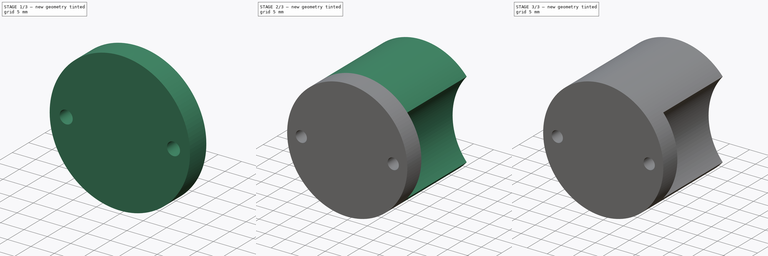
[diagram: build sequence overview — one tinted view per stage of 3, left to right]
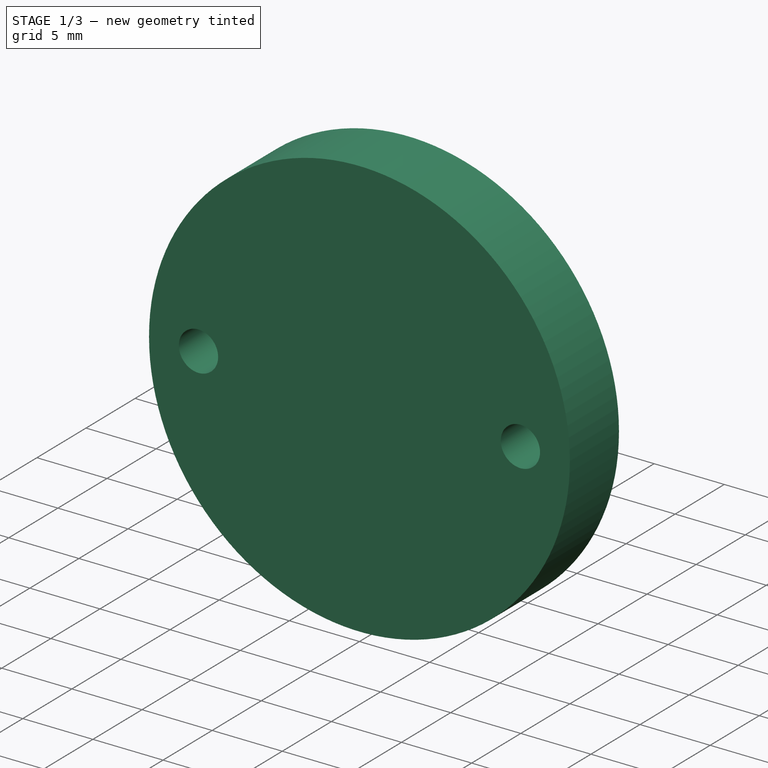
[diagram: stage 1 of 3 — iso view after this stage's code; geometry added in this stage tinted green]
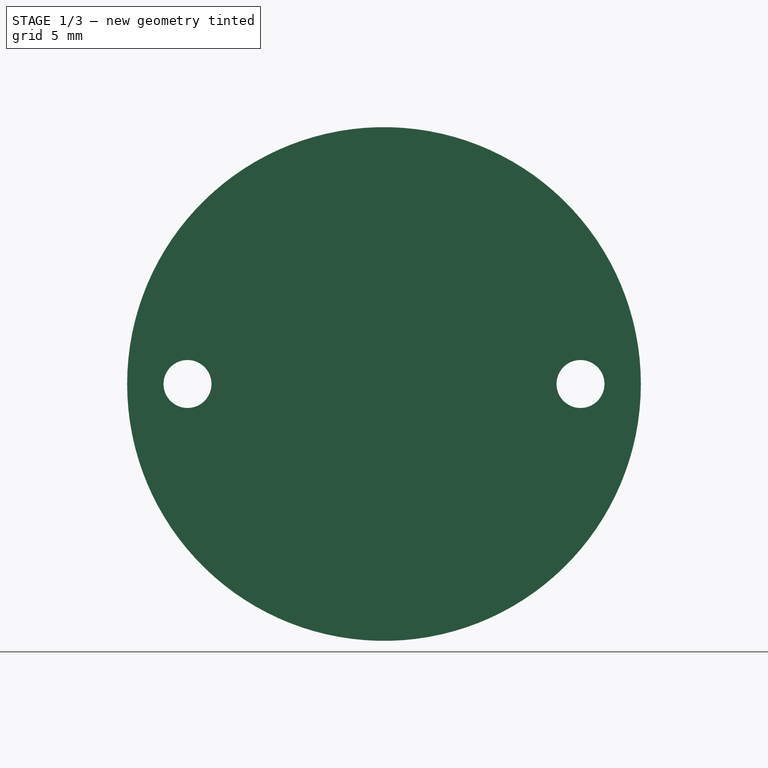
[diagram: stage 1 of 3 — front view after this stage's code; geometry added in this stage tinted green]
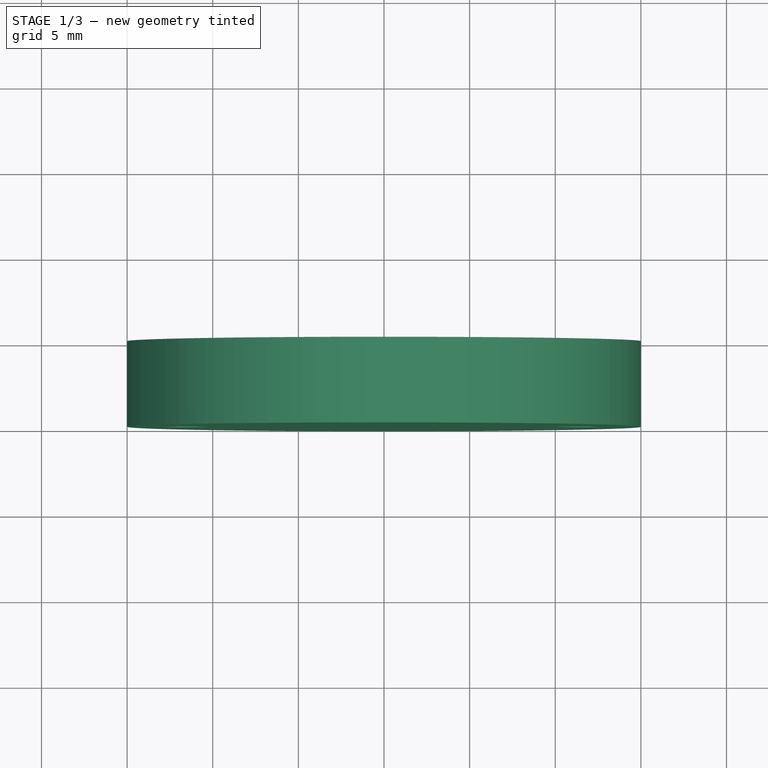
[diagram: stage 1 of 3 — top view after this stage's code; geometry added in this stage tinted green]
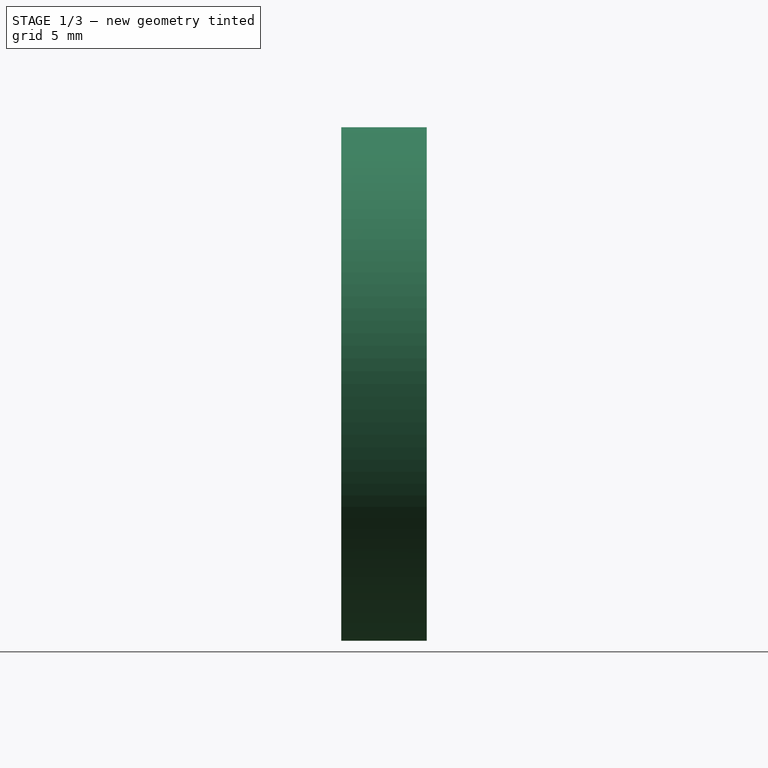
[diagram: stage 1 of 3 — right view after this stage's code; geometry added in this stage tinted green]
FCSTD DOCUMENT  (FreeCAD 0.18R16146 (Git))
Label: AxisTower
License: All rights reserved
LicenseURL: http://en.wikipedia.org/wiki/All_rights_reserved
objects: Sketcher::SketchObject×5, PartDesign::Pocket×3, PartDesign::Pad×2, PartDesign::Body×1
note: 16 computed .brp shape members not serialized (recipe doc carries the construction recipe); baked Part::Feature solids carry a one-line shape summary decoded from their .brp

FEATURE [Sketcher::SketchObject] Sketch073
  MapMode = 5
  Placement = pos=(0,0,0) rot=(1,0,0;1.5708rad)
  Support = -> [XZ_Plane001]
  sketch-geometry (1):
    g0: Circle CenterX=0 CenterY=0 CenterZ=0 NormalX=0 NormalY=0 NormalZ=1 AngleXU=0 Radius=15
  constraints (2):
    c: Coincident(g0,g-1)
    c: Radius(g0) = 15
FEATURE [PartDesign::Pad] Pad017
  Length = 5
  Length2 = 100
  Placement = pos=(0,0,0) rot=(1,0,0;1.5708rad)
  Profile = -> Sketch073
  Type = 0
FEATURE [Sketcher::SketchObject] Sketch074
  MapMode = 5
  Placement = pos=(0,0,0) rot=(-1,0,0;1.5708rad)
  Support = -> [Pad017]
  sketch-geometry (3):
    g0: Circle [constr] CenterX=0 CenterY=0 CenterZ=0 NormalX=0 NormalY=0 NormalZ=1 AngleXU=0 Radius=11.475
    g1: Circle CenterX=-11.475 CenterY=0 CenterZ=0 NormalX=0 NormalY=0 NormalZ=1 AngleXU=0 Radius=1.4
    g2: Circle CenterX=11.475 CenterY=0 CenterZ=0 NormalX=0 NormalY=0 NormalZ=1 AngleXU=0 Radius=1.4
  constraints (8):
    c: Coincident(g0,g-1)
    c: Radius(g0) = 11.475
    c: PointOnObject(g1,g0)
    c: PointOnObject(g1,g-1)
    c: Radius(g1) = 1.4
    c: PointOnObject(g2,g-1)
    c: PointOnObject(g2,g0)
    c: Radius(g2) = 1.4
FEATURE [PartDesign::Pocket] Pocket046
  BaseFeature = -> Pad017
  Length = 5
  Length2 = 100
  Placement = pos=(0,0,0) rot=(1,0,0;1.5708rad)
  Profile = -> Sketch074
  Type = 1
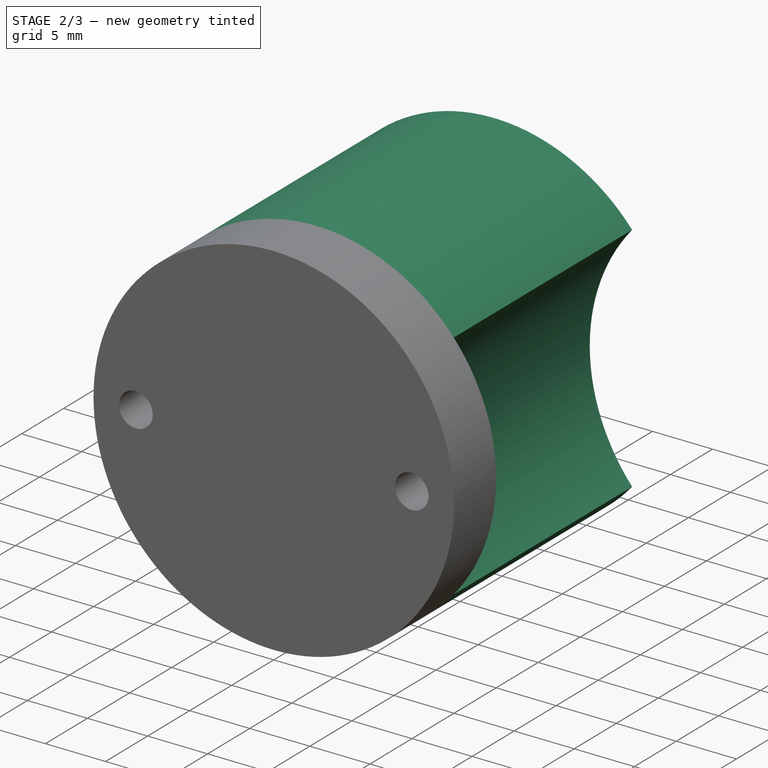
[diagram: stage 2 of 3 — iso view after this stage's code; geometry added in this stage tinted green]
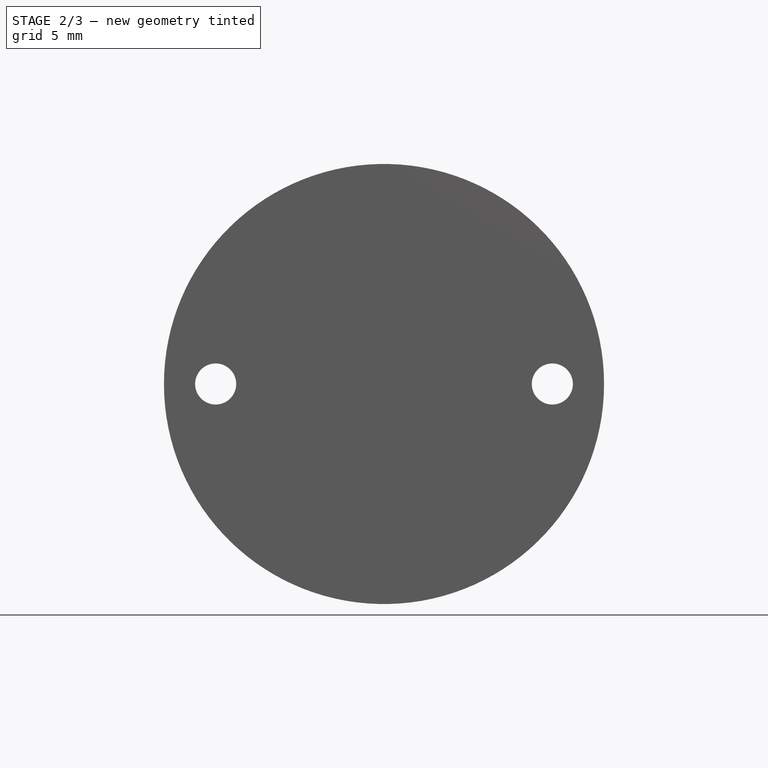
[diagram: stage 2 of 3 — front view after this stage's code; geometry added in this stage tinted green]
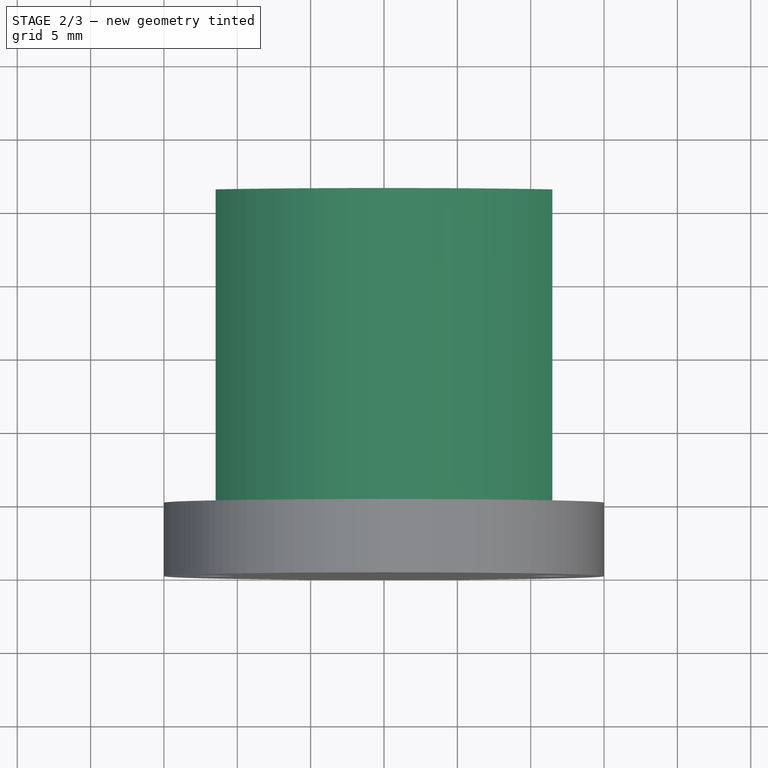
[diagram: stage 2 of 3 — top view after this stage's code; geometry added in this stage tinted green]
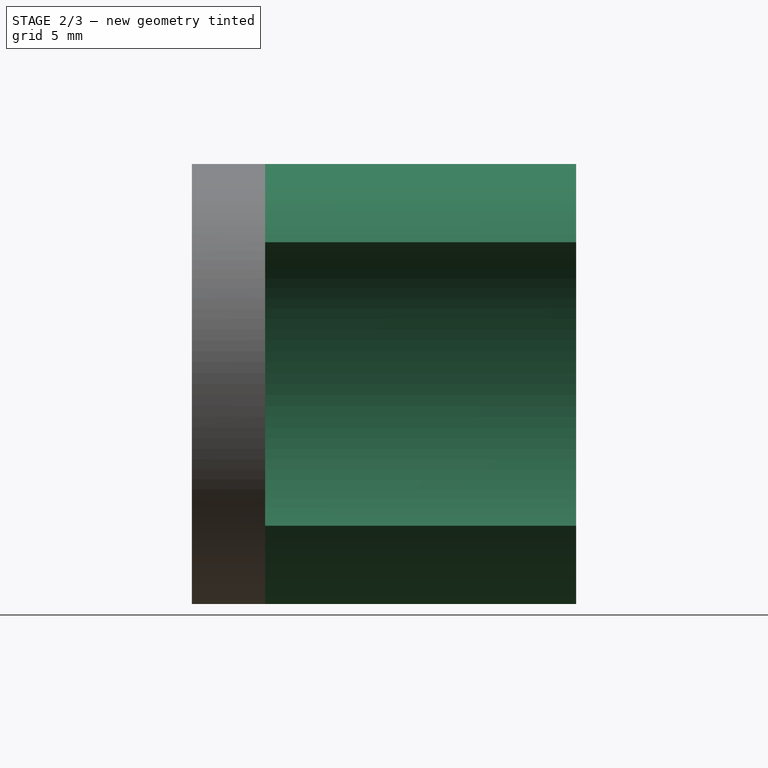
[diagram: stage 2 of 3 — right view after this stage's code; geometry added in this stage tinted green]
FEATURE [Sketcher::SketchObject] Sketch075
  ExternalGeometry = -> [Pocket046]
  MapMode = 5
  Placement = pos=(0,0,0) rot=(-1,0,0;1.5708rad)
  Support = -> [Pocket046]
  sketch-geometry (9):
    g0: ArcOfCircle CenterX=0 CenterY=0 CenterZ=0 NormalX=0 NormalY=0 NormalZ=1 AngleXU=0 Radius=15 StartAngle=0.699755 EndAngle=2.44184
    g1: GeomPoint X=-15 Y=0 Z=0
    g2: GeomPoint X=-7.95 Y=0 Z=0
    g3: LineSegment [constr] StartX=-11.475 StartY=-9.66045 StartZ=0 EndX=-11.475 EndY=9.66045 EndZ=0
    g4: ArcOfCircle CenterX=-22.95 CenterY=-2e-16 CenterZ=0 NormalX=0 NormalY=0 NormalZ=1 AngleXU=0 Radius=15 StartAngle=5.58343 EndAngle=6.98294
    g5: GeomPoint X=7.95 Y=0 Z=0
    g6: LineSegment [constr] StartX=11.475 StartY=9.66045 StartZ=0 EndX=11.475 EndY=-9.66045 EndZ=0
    g7: ArcOfCircle CenterX=22.95 CenterY=1.9e-15 CenterZ=0 NormalX=0 NormalY=0 NormalZ=1 AngleXU=0 Radius=15 StartAngle=2.44184 EndAngle=3.84135
    g8: ArcOfCircle CenterX=0 CenterY=0 CenterZ=0 NormalX=0 NormalY=0 NormalZ=1 AngleXU=0 Radius=15 StartAngle=3.84135 EndAngle=5.58343
  constraints (25):
    c: Coincident(g0,g-1)
    c: Radius(g0) = 15
    c: PointOnObject(g1,g0)
    c: PointOnObject(g1,g-1)
    c: Distance(g1,g-4) = 3.525
    c: PointOnObject(g2,g-1)
    c: Distance(g-4,g2) = 3.525
    c: Vertical(g3)
    c: PointOnObject(g-4,g3)
    c: PointOnObject(g4,g0)
    c: PointOnObject(g2,g4)
    c: PointOnObject(g5,g-1)
    c: Distance(g5,g-5) = 3.525
    c: Vertical(g6)
    c: PointOnObject(g-5,g6)
    c: Coincident(g7,g6)
    c: PointOnObject(g5,g7)
    c: Coincident(g0,g6)
    c: Coincident(g0,g3)
    c: Coincident(g8,g3)
    c: Coincident(g0,g8)
    c: Coincident(g4,g8)
    c: Coincident(g4,g0)
    c: Coincident(g8,g7)
    c: Coincident(g7,g0)
FEATURE [PartDesign::Pad] Pad018
  BaseFeature = -> Pocket046
  Length = 21.2
  Length2 = 100
  Placement = pos=(0,0,0) rot=(1,0,0;1.5708rad)
  Profile = -> Sketch075
  Type = 0
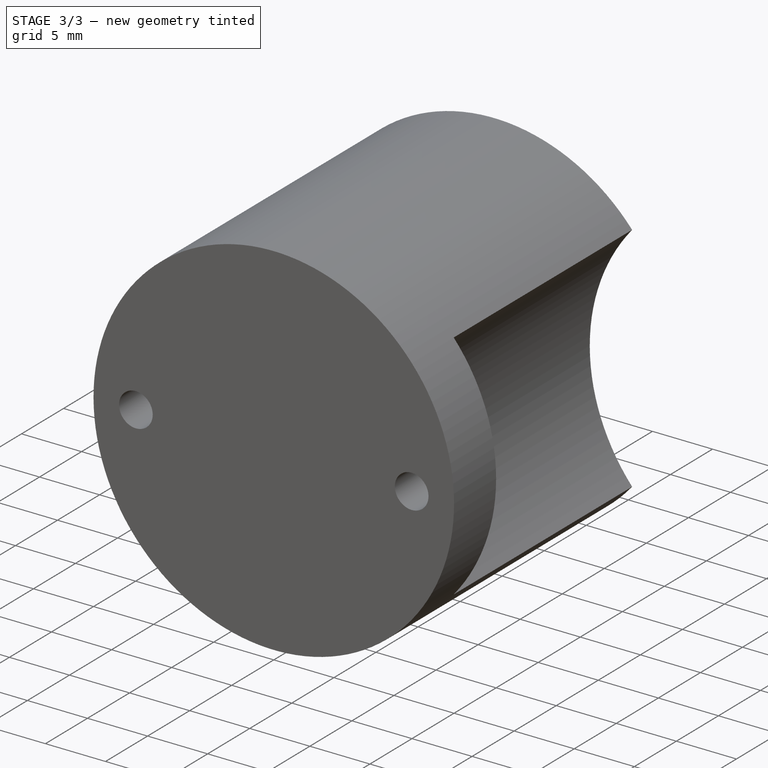
[diagram: stage 3 of 3 — iso view after this stage's code; geometry added in this stage tinted green]
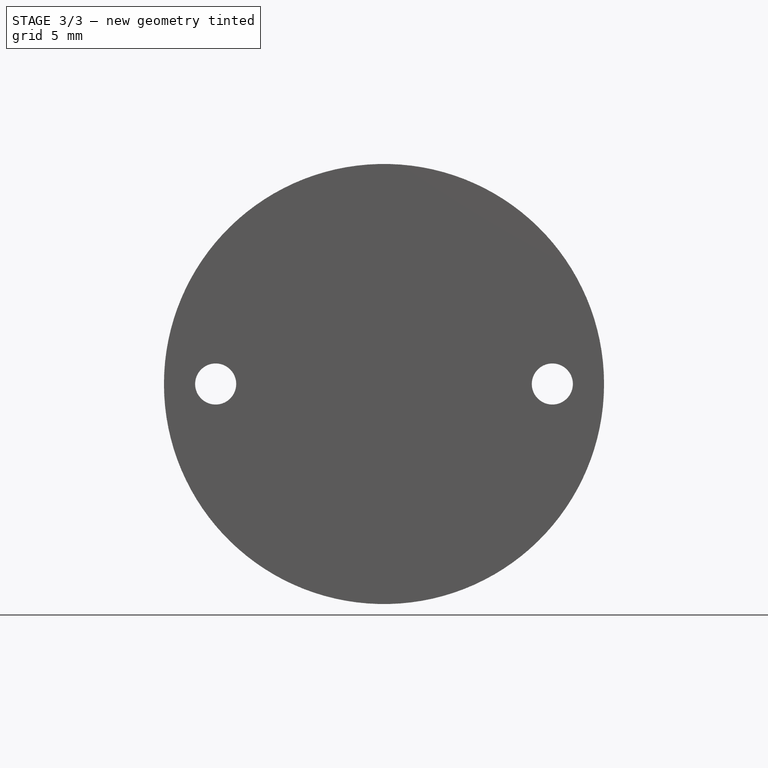
[diagram: stage 3 of 3 — front view after this stage's code; geometry added in this stage tinted green]
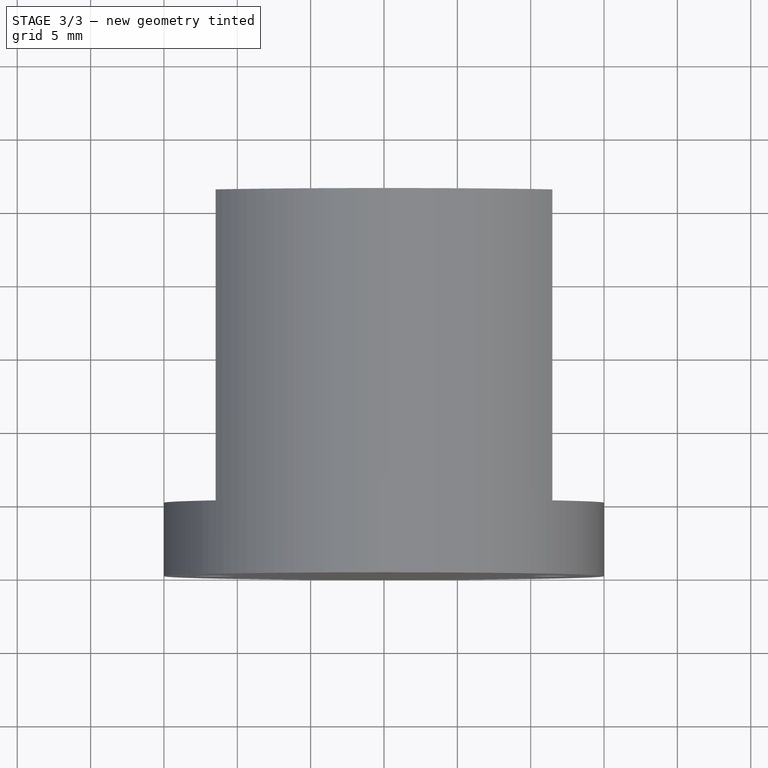
[diagram: stage 3 of 3 — top view after this stage's code; geometry added in this stage tinted green]
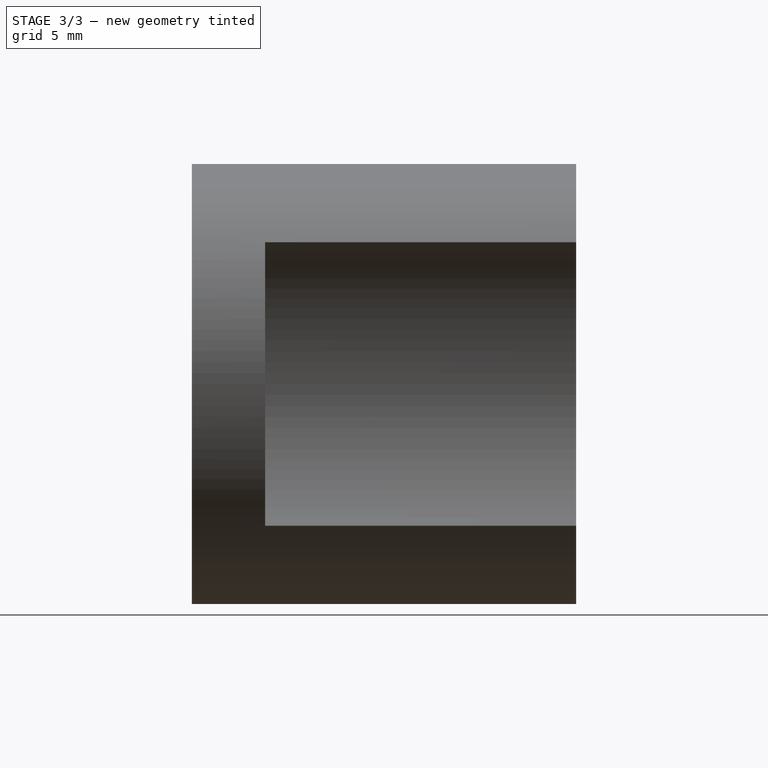
[diagram: stage 3 of 3 — right view after this stage's code; geometry added in this stage tinted green]
FEATURE [Sketcher::SketchObject] Sketch
  MapMode = 5
  Placement = pos=(0,21.2,-9.3e-15) rot=(-1,0,0;1.5708rad)
  Support = -> [Pad018]
  sketch-geometry (1):
    g0: Circle CenterX=0 CenterY=0 CenterZ=0 NormalX=0 NormalY=0 NormalZ=1 AngleXU=0 Radius=4
  constraints (2):
    c: Coincident(g0,g-1)
    c: Radius(g0) = 4
FEATURE [PartDesign::Pocket] Pocket
  BaseFeature = -> Pad018
  Length = 4
  Length2 = 100
  Placement = pos=(0,0,0) rot=(1,0,0;1.5708rad)
  Profile = -> Sketch
  Type = 0
FEATURE [Sketcher::SketchObject] Sketch076
  ExternalGeometry = -> [Pocket]
  MapMode = 5
  Placement = pos=(0,21.2,-9.3e-15) rot=(-1,0,0;1.5708rad)
  Support = -> [Pocket]
  sketch-geometry (10):
    g0: LineSegment [constr] StartX=-7.95 StartY=9.66045 StartZ=0 EndX=7.95 EndY=9.66045 EndZ=0
    g1: LineSegment [constr] StartX=7.95 StartY=9.66045 StartZ=0 EndX=7.95 EndY=-9.66045 EndZ=0
    g2: LineSegment [constr] StartX=7.95 StartY=-9.66045 StartZ=0 EndX=-7.95 EndY=-9.66045 EndZ=0
    g3: LineSegment [constr] StartX=-7.95 StartY=-9.66045 StartZ=0 EndX=-7.95 EndY=9.66045 EndZ=0
    g4: LineSegment [constr] StartX=-11.475 StartY=9.66045 StartZ=0 EndX=11.475 EndY=9.66045 EndZ=0
    g5: LineSegment [constr] StartX=-11.475 StartY=-9.66045 StartZ=0 EndX=11.475 EndY=-9.66045 EndZ=0
    g6: Circle CenterX=-7.95 CenterY=9.66045 CenterZ=0 NormalX=0 NormalY=0 NormalZ=1 AngleXU=0 Radius=1.4
    g7: Circle CenterX=7.95 CenterY=9.66045 CenterZ=0 NormalX=0 NormalY=0 NormalZ=1 AngleXU=0 Radius=1.4
    g8: Circle CenterX=-7.95 CenterY=-9.66045 CenterZ=0 NormalX=0 NormalY=0 NormalZ=1 AngleXU=0 Radius=1.4
    g9: Circle CenterX=7.95 CenterY=-9.66045 CenterZ=0 NormalX=0 NormalY=0 NormalZ=1 AngleXU=0 Radius=1.4
  constraints (22):
    c: Coincident(g0,g1)
    c: Coincident(g1,g2)
    c: Coincident(g2,g3)
    c: Coincident(g3,g0)
    c: Vertical(g1)
    c: Vertical(g3)
    c: Tangent(g1,g-4)
    c: Tangent(g3,g-3)
    c: Coincident(g4,g-3)
    c: Coincident(g4,g-4)
    c: Tangent(g0,g4)
    c: Coincident(g5,g-3)
    c: Coincident(g5,g-4)
    c: Tangent(g5,g2)
    c: Coincident(g6,g0)
    c: Radius(g6) = 1.4
    c: Coincident(g7,g0)
    c: Radius(g7) = 1.4
    c: Coincident(g8,g2)
    c: Radius(g8) = 1.4
    c: Coincident(g9,g1)
    c: Radius(g9) = 1.4
FEATURE [PartDesign::Pocket] Pocket048
  BaseFeature = -> Pocket
  Length = 8
  Length2 = 100
  Placement = pos=(0,0,0) rot=(1,0,0;1.5708rad)
  Profile = -> Sketch076
  Type = 0
FEATURE [PartDesign::Body] Body001  label="AxisTower"
  Group = -> [Sketch073,Pad017,Sketch074,Pocket046,Sketch075,Pad018,Sketch,Pocket,Sketch076,Pocket048]
  Origin = -> Origin001
  Placement = pos=(60,-8.4,60) rot=(0,0,1;0rad)
  Tip = -> Pocket048
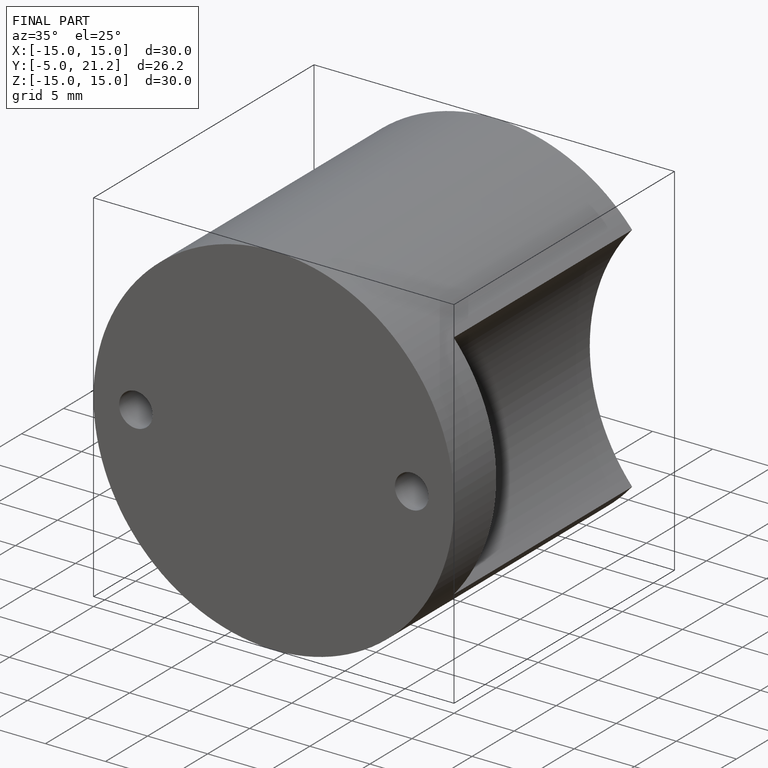
[diagram: finished part — iso view with bounding-box wireframe]
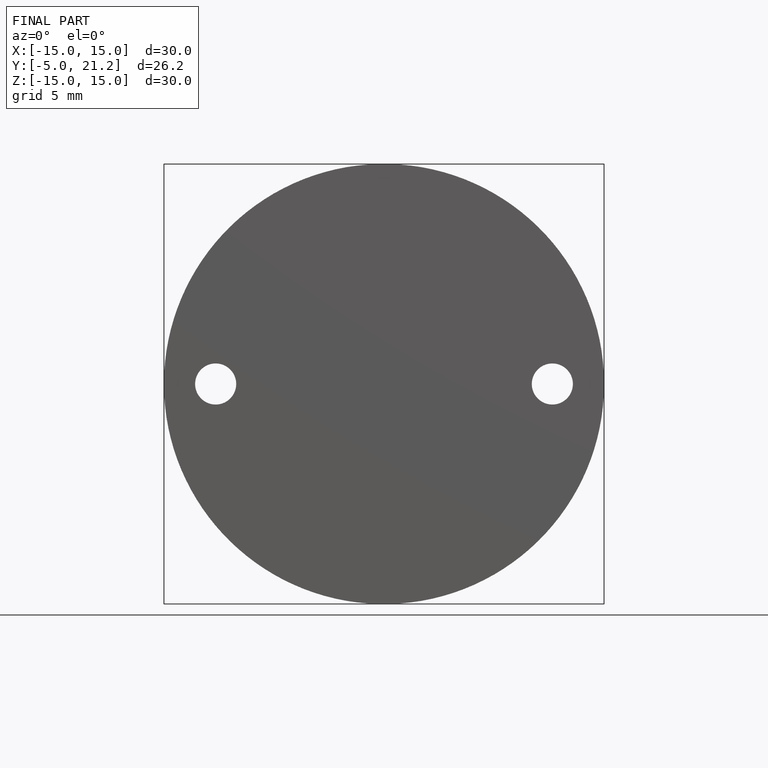
[diagram: finished part — front view with bounding-box wireframe]
